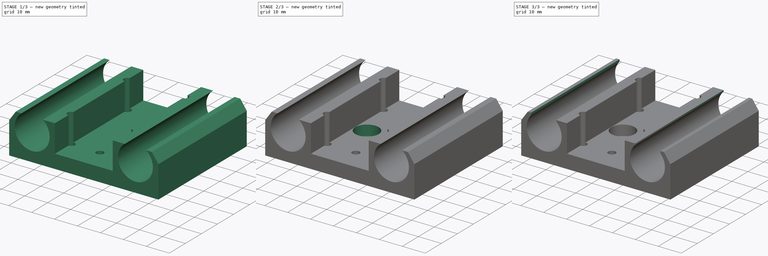
[diagram: build sequence overview — one tinted view per stage of 3, left to right]
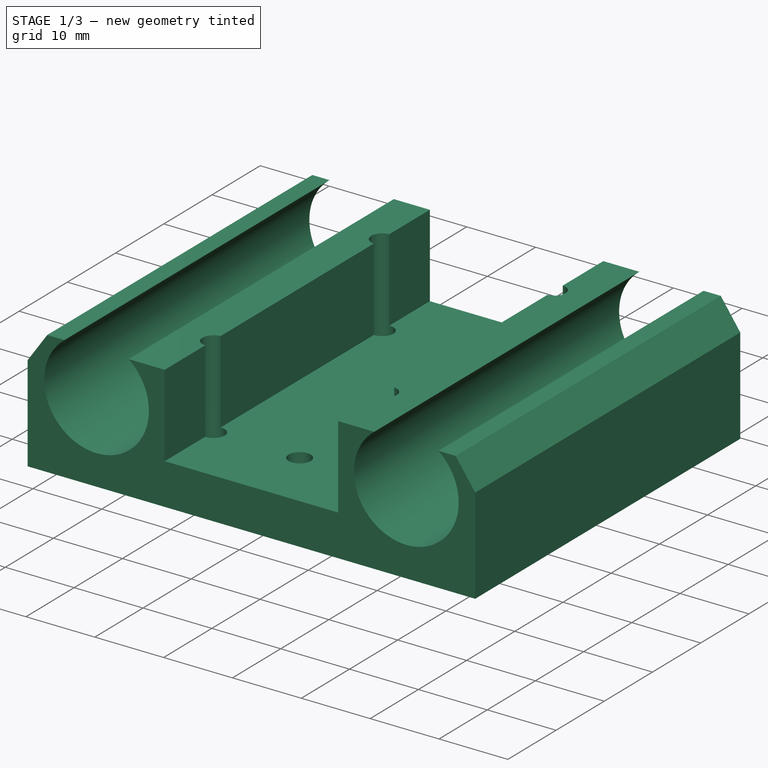
[diagram: stage 1 of 3 — iso view after this stage's code; geometry added in this stage tinted green]
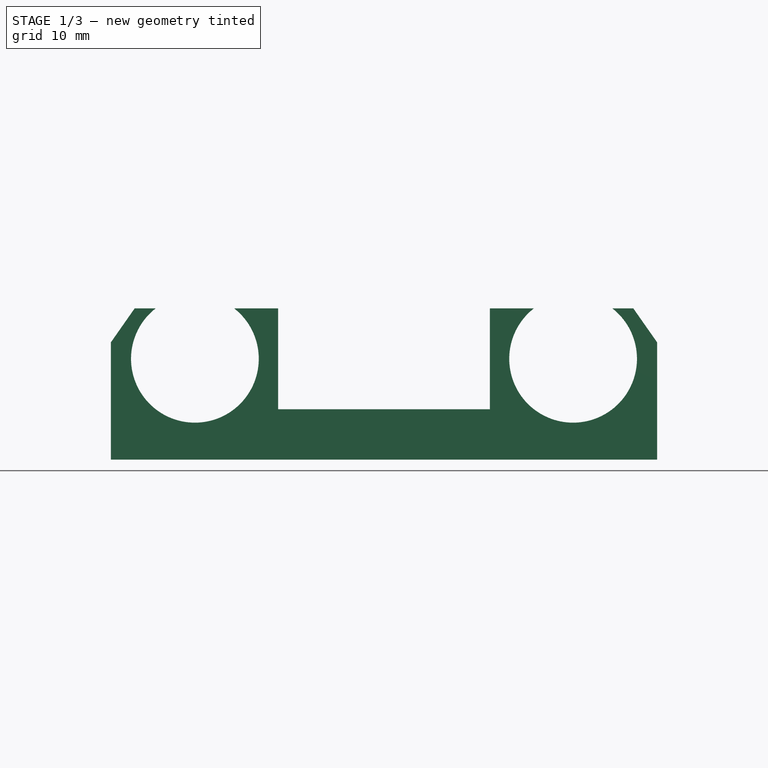
[diagram: stage 1 of 3 — front view after this stage's code; geometry added in this stage tinted green]
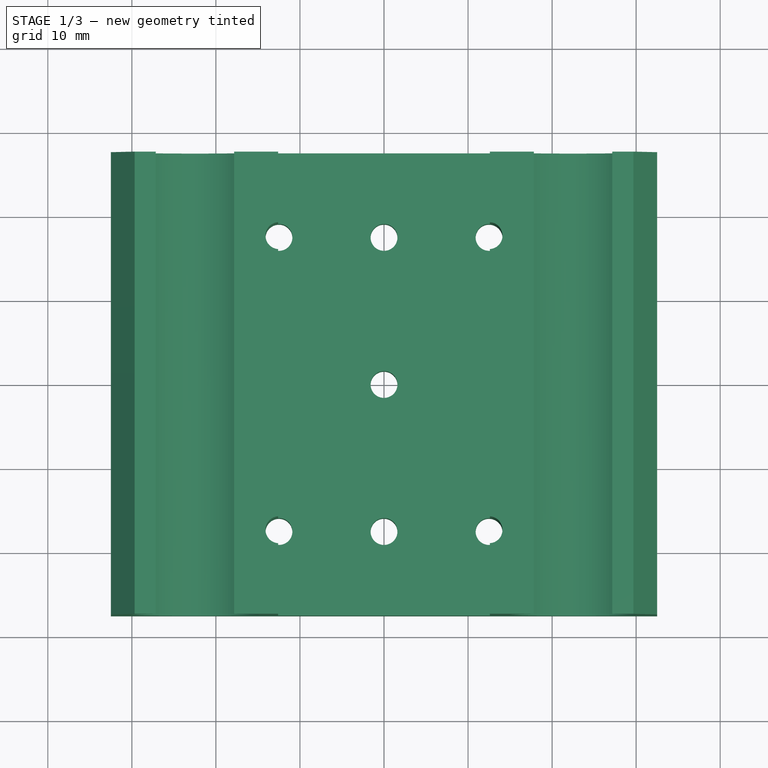
[diagram: stage 1 of 3 — top view after this stage's code; geometry added in this stage tinted green]
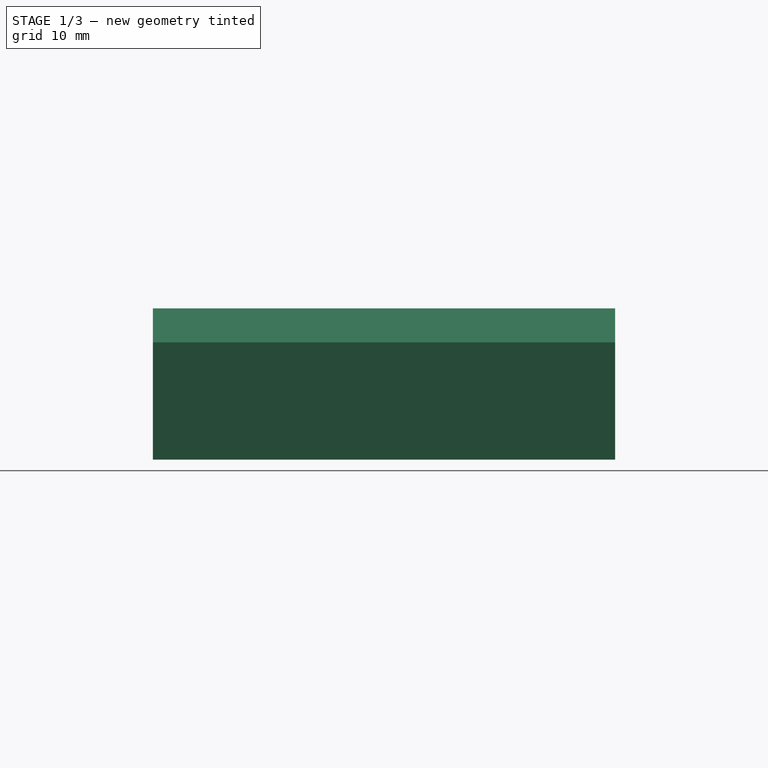
[diagram: stage 1 of 3 — right view after this stage's code; geometry added in this stage tinted green]
FCSTD DOCUMENT  (FreeCAD 0.19R20209 (Git))
Label: X-Axel-Bearing_001a
License: Creative Commons Attribution
LicenseURL: http://creativecommons.org/licenses/by/4.0/
objects: Sketcher::SketchObject×5, PartDesign::Pocket×4, PartDesign::Pad×1, PartDesign::Plane×1, PartDesign::Body×1
note: 17 computed .brp shape members not serialized (recipe doc carries the construction recipe); baked Part::Feature solids carry a one-line shape summary decoded from their .brp

FEATURE [Sketcher::SketchObject] Sketch
  MapMode = 5
  Placement = pos=(0,0,0) rot=(1,0,0;1.5708rad)
  Support = -> [XZ_Plane]
  sketch-geometry (14):
    g0: LineSegment StartX=-29.6648 StartY=6 StartZ=0 EndX=-27.1648 EndY=6 EndZ=0
    g1: LineSegment StartX=32.5 StartY=1.95086 StartZ=0 EndX=32.5 EndY=-12 EndZ=0
    g2: LineSegment StartX=32.5 StartY=-12 StartZ=0 EndX=-32.5 EndY=-12 EndZ=0
    g3: LineSegment StartX=-32.5 StartY=-12 StartZ=0 EndX=-32.5 EndY=1.95086 EndZ=0
    g4: ArcOfCircle CenterX=-22.5 CenterY=0 CenterZ=0 NormalX=0 NormalY=0 NormalZ=1 AngleXU=0 Radius=7.6 StartAngle=2.23164 EndAngle=7.19314
    g5: ArcOfCircle CenterX=22.5 CenterY=0 CenterZ=0 NormalX=0 NormalY=0 NormalZ=1 AngleXU=0 Radius=7.6 StartAngle=2.23164 EndAngle=7.19314
    g6: LineSegment StartX=-17.8352 StartY=6 StartZ=0 EndX=-12.6 EndY=6 EndZ=0
    g7: LineSegment StartX=27.1648 StartY=6 StartZ=0 EndX=29.6648 EndY=6 EndZ=0
    g8: LineSegment StartX=12.6 StartY=6 StartZ=0 EndX=12.6 EndY=-6 EndZ=0
    g9: LineSegment StartX=12.6 StartY=-6 StartZ=0 EndX=-12.6 EndY=-6 EndZ=0
    g10: LineSegment StartX=-12.6 StartY=-6 StartZ=0 EndX=-12.6 EndY=6 EndZ=0
    g11: LineSegment StartX=12.6 StartY=6 StartZ=0 EndX=17.8352 EndY=6 EndZ=0
    g12: LineSegment StartX=29.6648 StartY=6 StartZ=0 EndX=32.5 EndY=1.95086 EndZ=0
    g13: LineSegment StartX=-32.5 StartY=1.95086 StartZ=0 EndX=-29.6648 EndY=6 EndZ=0
  constraints (38):
    c: Coincident(g1,g2)
    c: Coincident(g2,g3)
    c: Horizontal(g0)
    c: Vertical(g1)
    c: Vertical(g3)
    c: Symmetric(g1,g2,g-2)
    c: DistanceX(g2,g1) = 65
    c: DistanceY(g1,g-1) = 12
    c: Equal(g5,g4)
    c: Horizontal(g4,g5)
    c: Diameter(g4) = 15.2
    c: DistanceX(g4,g5) = 45
    c: Symmetric(g4,g5,g-1)
    c: Coincident(g0,g4)
    c: Coincident(g6,g4)
    c: Tangent(g0,g6)
    c: Coincident(g11,g5)
    c: Coincident(g7,g5)
    c: Tangent(g6,g7)
    c: Coincident(g8,g9)
    c: Coincident(g9,g10)
    c: Vertical(g8)
    c: Vertical(g10)
    c: DistanceY(g1,g8) = 6
    c: DistanceX(g9,g9) = 25.2
    c: Symmetric(g8,g9,g-2)
    c: Coincident(g6,g10)
    c: Coincident(g11,g8)
    c: Tangent(g6,g11)
    c: Angle(g12,g1) = 2.53073
    c: Coincident(g7,g12)
    c: Coincident(g1,g12)
    c: Coincident(g0,g13)
    c: Coincident(g3,g13)
    c: Angle(g3,g13) = 2.53073
    c: Equal(g7,g0)
    c: DistanceX(g0,g0) = 2.5
    c: DistanceY(g1,g7) = 18
FEATURE [PartDesign::Pad] Pad
  Length = 55
  Length2 = 100
  Midplane = true
  Placement = pos=(0,0,0) rot=(1,0,0;1.5708rad)
  Profile = -> Sketch
  Refine = true
  Type = 0
FEATURE [Sketcher::SketchObject] Sketch001
  MapMode = 5
  Support = -> [XY_Plane]
  sketch-geometry (11):
    g0: LineSegment [constr] StartX=-12.5 StartY=17.5 StartZ=0 EndX=12.5 EndY=17.5 EndZ=0
    g1: LineSegment [constr] StartX=12.5 StartY=17.5 StartZ=0 EndX=12.5 EndY=-17.5 EndZ=0
    g2: LineSegment [constr] StartX=12.5 StartY=-17.5 StartZ=0 EndX=-12.5 EndY=-17.5 EndZ=0
    g3: LineSegment [constr] StartX=-12.5 StartY=-17.5 StartZ=0 EndX=-12.5 EndY=17.5 EndZ=0
    g4: Circle CenterX=-12.5 CenterY=17.5 CenterZ=0 NormalX=0 NormalY=0 NormalZ=1 AngleXU=0 Radius=1.6
    g5: Circle CenterX=-12.5 CenterY=-17.5 CenterZ=0 NormalX=0 NormalY=0 NormalZ=1 AngleXU=0 Radius=1.6
    g6: Circle CenterX=12.5 CenterY=17.5 CenterZ=0 NormalX=0 NormalY=0 NormalZ=1 AngleXU=0 Radius=1.6
    g7: Circle CenterX=12.5 CenterY=-17.5 CenterZ=0 NormalX=0 NormalY=0 NormalZ=1 AngleXU=0 Radius=1.6
    g8: Circle CenterX=3e-16 CenterY=17.5 CenterZ=0 NormalX=0 NormalY=0 NormalZ=1 AngleXU=0 Radius=1.6
    g9: Circle CenterX=-6e-16 CenterY=-17.5 CenterZ=0 NormalX=0 NormalY=0 NormalZ=1 AngleXU=0 Radius=1.6
    g10: Circle CenterX=0 CenterY=0 CenterZ=0 NormalX=0 NormalY=0 NormalZ=1 AngleXU=0 Radius=1.6
  constraints (25):
    c: Coincident(g0,g1)
    c: Coincident(g1,g2)
    c: Coincident(g2,g3)
    c: Coincident(g3,g0)
    c: Horizontal(g0)
    c: Horizontal(g2)
    c: Vertical(g1)
    c: Vertical(g3)
    c: Symmetric(g0,g2,g-1)
    c: DistanceX(g0,g0) = 25
    c: DistanceY(g1,g1) = 35
    c: Equal(g7,g6)
    c: Equal(g6,g4)
    c: Equal(g4,g5)
    c: Diameter(g4) = 3.2
    c: Coincident(g4,g0)
    c: Coincident(g5,g2)
    c: Coincident(g6,g0)
    c: Coincident(g7,g1)
    c: Equal(g8,g9)
    c: Equal(g9,g4)
    c: Symmetric(g4,g6,g8)
    c: Symmetric(g5,g7,g9)
    c: Equal(g10,g4)
    c: Coincident(g10,g-1)
FEATURE [Sketcher::SketchObject] Sketch002
  MapMode = 5
  Support = -> [XY_Plane]
  sketch-geometry (2):
    g0: Circle CenterX=-7.4 CenterY=0 CenterZ=0 NormalX=0 NormalY=0 NormalZ=1 AngleXU=0 Radius=5.1
    g1: Circle CenterX=7.4 CenterY=0 CenterZ=0 NormalX=0 NormalY=0 NormalZ=1 AngleXU=0 Radius=5.1
  constraints (5):
    c: Equal(g1,g0)
    c: Horizontal(g1,g0)
    c: Diameter(g0) = 10.2
    c: Symmetric(g0,g1,g-1)
    c: DistanceX(g0,g1) = 14.8
FEATURE [PartDesign::Pocket] Pocket
  BaseFeature = -> Pad
  Length = 5
  Length2 = 100
  Midplane = true
  Placement = pos=(0,0,0) rot=(1,0,0;1.5708rad)
  Profile = -> Sketch001
  Refine = true
  Type = 1
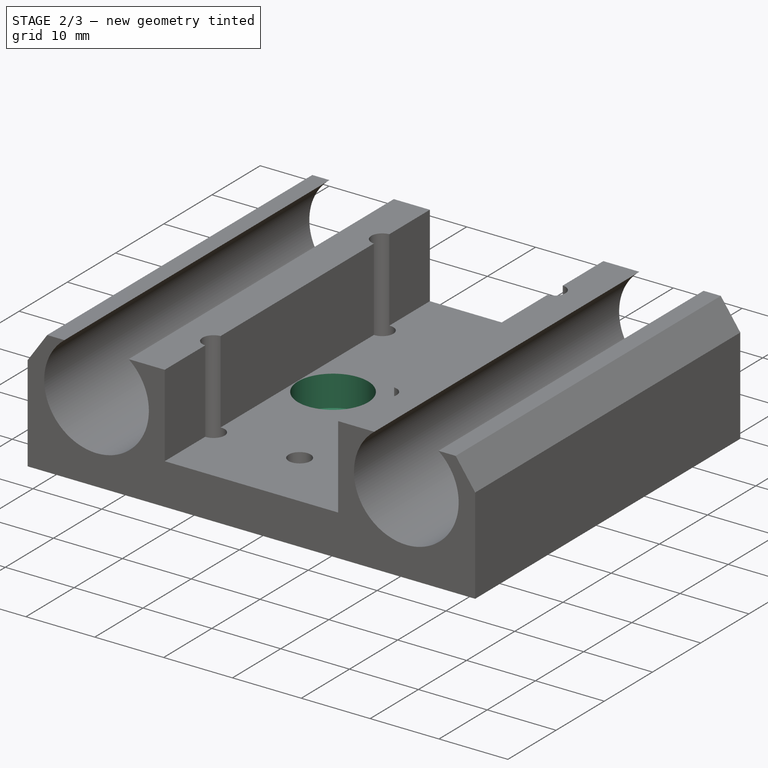
[diagram: stage 2 of 3 — iso view after this stage's code; geometry added in this stage tinted green]
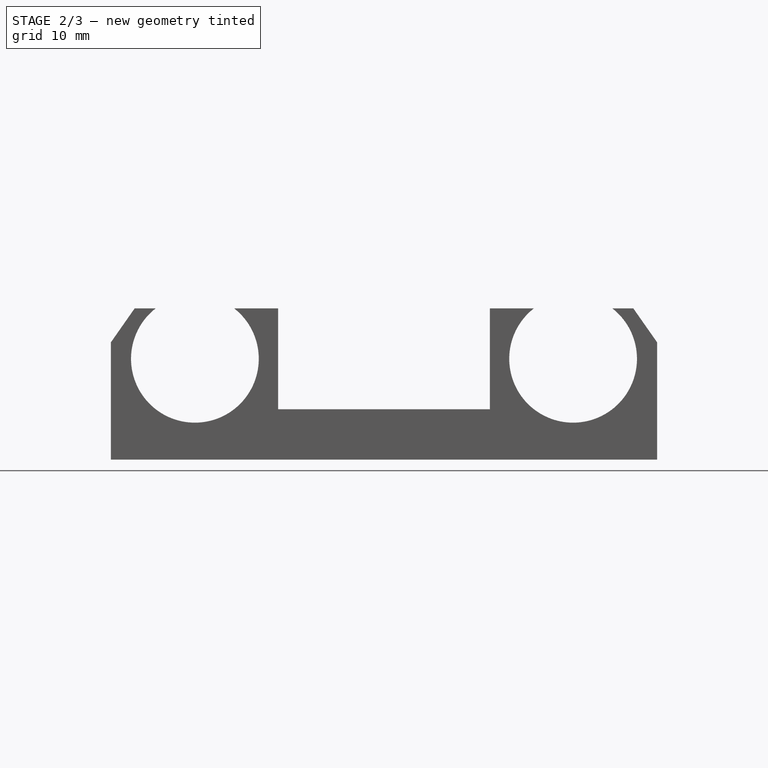
[diagram: stage 2 of 3 — front view after this stage's code; geometry added in this stage tinted green]
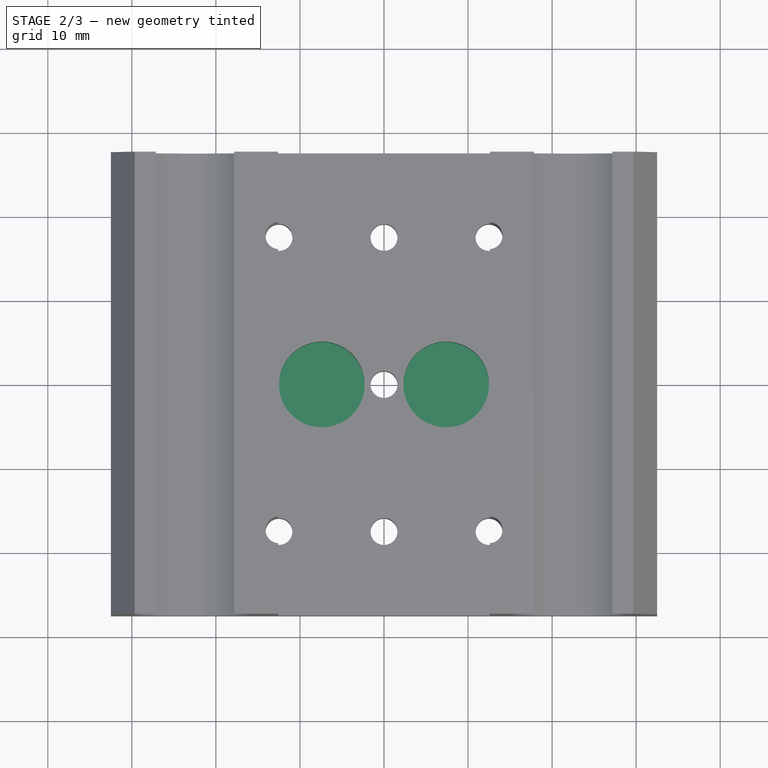
[diagram: stage 2 of 3 — top view after this stage's code; geometry added in this stage tinted green]
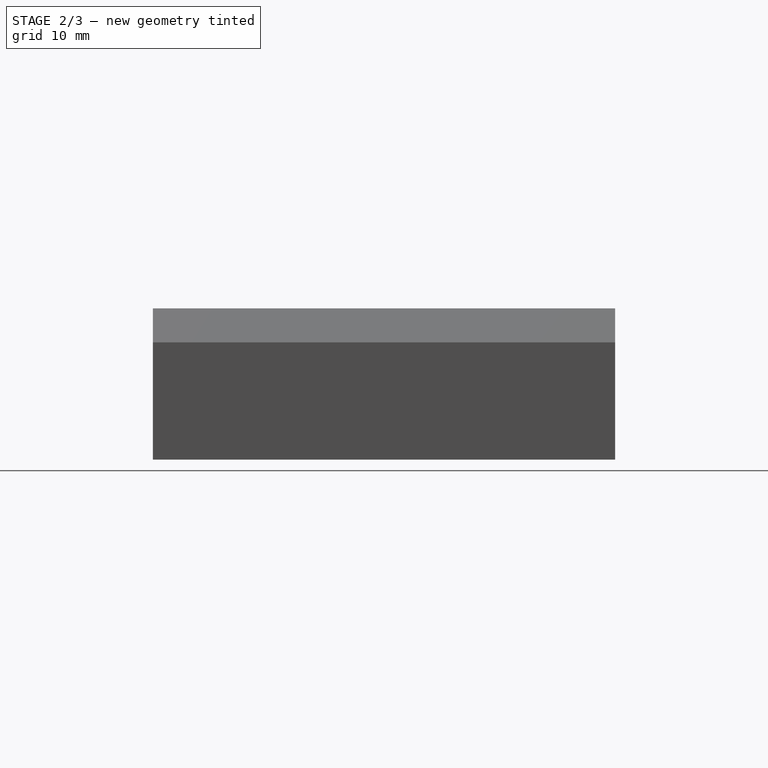
[diagram: stage 2 of 3 — right view after this stage's code; geometry added in this stage tinted green]
FEATURE [PartDesign::Pocket] Pocket001
  BaseFeature = -> Pocket
  Length = 10.5
  Length2 = 100
  Placement = pos=(0,0,0) rot=(1,0,0;1.5708rad)
  Profile = -> Sketch002
  Refine = true
  Type = 0
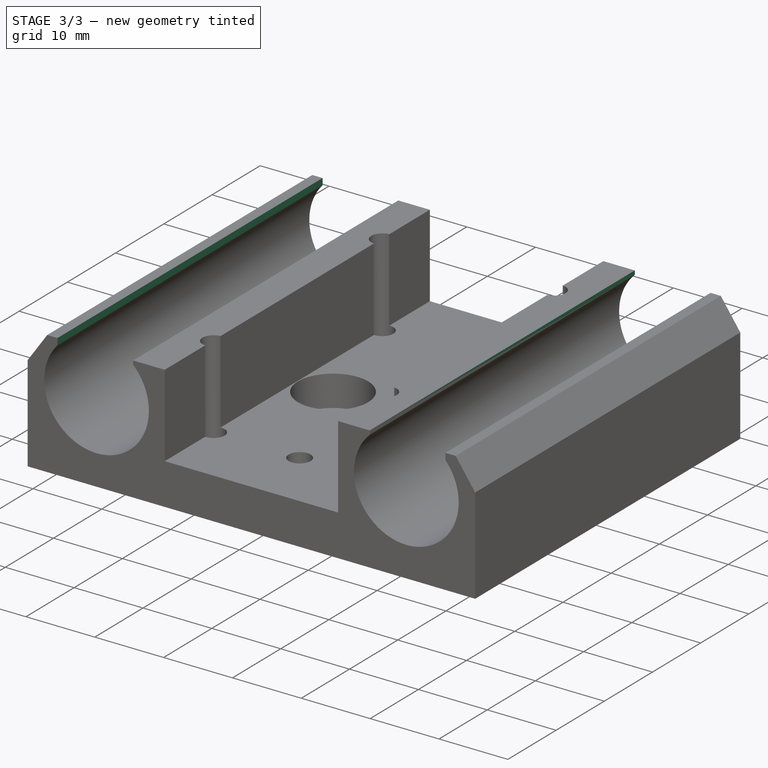
[diagram: stage 3 of 3 — iso view after this stage's code; geometry added in this stage tinted green]
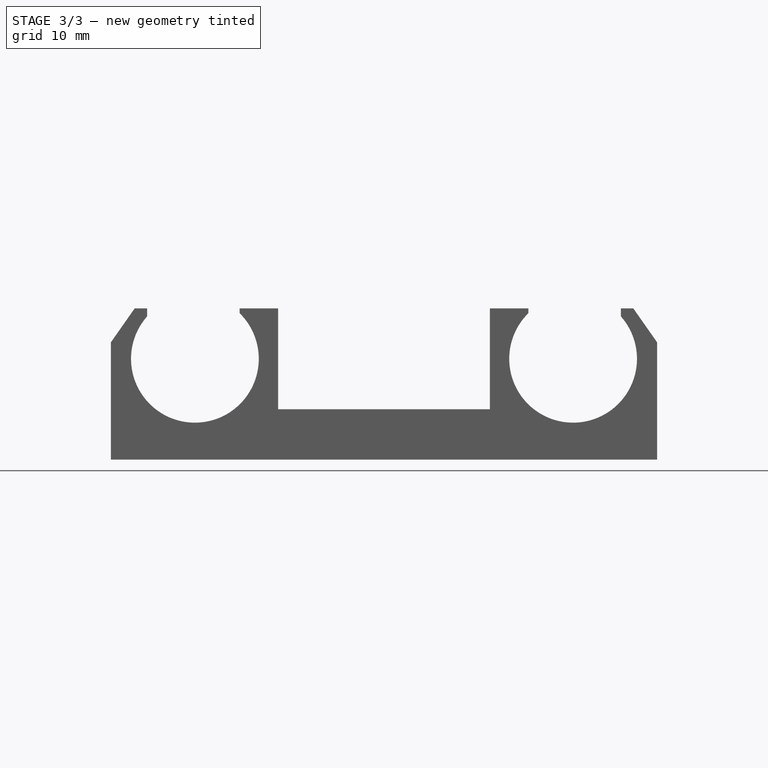
[diagram: stage 3 of 3 — front view after this stage's code; geometry added in this stage tinted green]
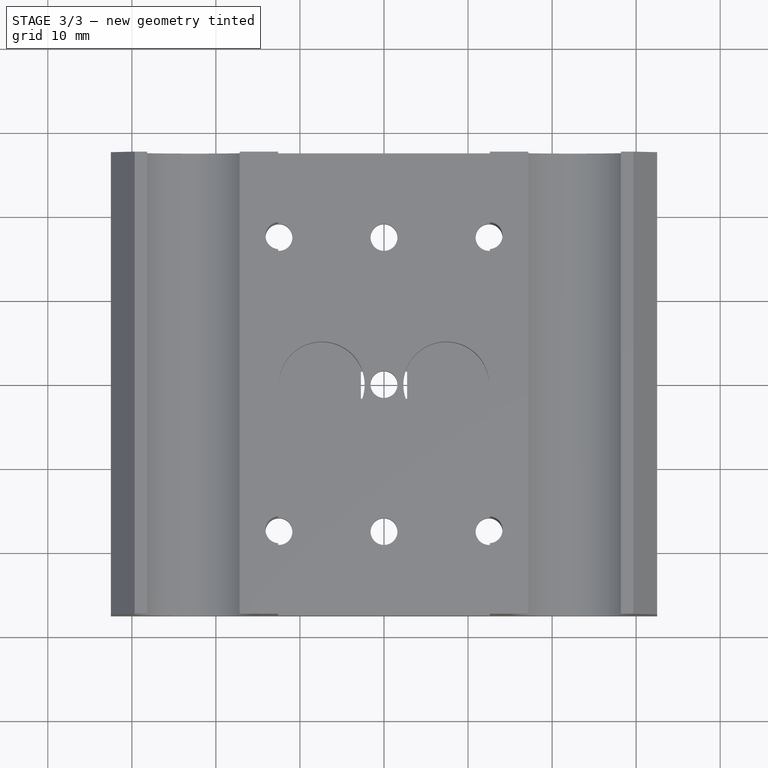
[diagram: stage 3 of 3 — top view after this stage's code; geometry added in this stage tinted green]
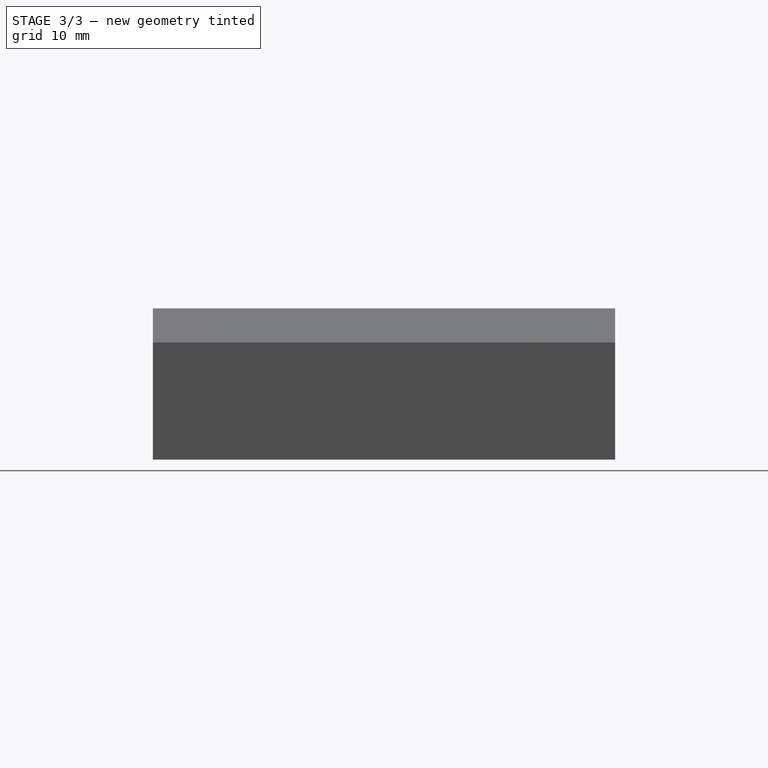
[diagram: stage 3 of 3 — right view after this stage's code; geometry added in this stage tinted green]
FEATURE [Sketcher::SketchObject] Sketch004
  MapMode = 5
  Placement = pos=(0,0,0) rot=(1,0,0;1.5708rad)
  Support = -> [XZ_Plane]
  sketch-geometry (10):
    g0: LineSegment StartX=-28.1774 StartY=11 StartZ=0 EndX=-17.1774 EndY=11 EndZ=0
    g1: LineSegment StartX=-17.1774 StartY=11 StartZ=0 EndX=-17.1774 EndY=0 EndZ=0
    g2: LineSegment StartX=-17.1774 StartY=0 StartZ=0 EndX=-28.1774 EndY=0 EndZ=0
    g3: LineSegment StartX=-28.1774 StartY=0 StartZ=0 EndX=-28.1774 EndY=11 EndZ=0
    g4: LineSegment StartX=17.1774 StartY=11 StartZ=0 EndX=28.1774 EndY=11 EndZ=0
    g5: LineSegment StartX=28.1774 StartY=11 StartZ=0 EndX=28.1774 EndY=0 EndZ=0
    g6: LineSegment StartX=28.1774 StartY=0 StartZ=0 EndX=17.1774 EndY=0 EndZ=0
    g7: LineSegment StartX=17.1774 StartY=0 StartZ=0 EndX=17.1774 EndY=11 EndZ=0
    g8: GeomPoint X=-22.6774 Y=0 Z=0
    g9: GeomPoint X=22.6774 Y=0 Z=0
  constraints (24):
    c: Coincident(g0,g1)
    c: Coincident(g1,g2)
    c: Coincident(g2,g3)
    c: Coincident(g3,g0)
    c: Horizontal(g0)
    c: Horizontal(g2)
    c: Vertical(g1)
    c: Vertical(g3)
    c: Coincident(g4,g5)
    c: Coincident(g5,g6)
    c: Coincident(g6,g7)
    c: Coincident(g7,g4)
    c: Horizontal(g4)
    c: Horizontal(g6)
    c: Vertical(g5)
    c: Vertical(g7)
    c: Equal(g2,g6)
    c: DistanceX(g0,g0) = 11
    c: Symmetric(g6,g5,g9)
    c: Symmetric(g1,g2,g8)
    c: Horizontal(g4,g0)
    c: Equal(g3,g0)
    c: Symmetric(g8,g9,g-1)
    c: Horizontal(g8,g9)
FEATURE [PartDesign::Pocket] Pocket003
  BaseFeature = -> Pocket001
  Length = 5
  Length2 = 100
  Midplane = true
  Placement = pos=(0,0,0) rot=(1,0,0;1.5708rad)
  Profile = -> Sketch004
  Refine = true
  Type = 1
FEATURE [PartDesign::Plane] DatumPlane
  AttachmentOffset = pos=(0,0,-12) rot=(0,0,1;0rad)
  Length = 76.9583
  MapMode = 5
  Placement = pos=(0,0,-12) rot=(0,0,1;0rad)
  ResizeMode = 0
  Support = -> [XY_Plane]
  Width = 66.9583
FEATURE [Sketcher::SketchObject] Sketch005
  ExternalGeometry = -> [Pocket003]
  MapMode = 5
  Placement = pos=(0,0,-12) rot=(0,0,1;0rad)
  Support = -> [DatumPlane]
  sketch-geometry (49):
    g0: LineSegment StartX=-9.75 StartY=15.9123 StartZ=0 EndX=-9.75 EndY=19.0877 EndZ=0
    g1: LineSegment StartX=-9.75 StartY=19.0877 StartZ=0 EndX=-12.5 EndY=20.6754 EndZ=0
    g2: LineSegment StartX=-12.5 StartY=20.6754 StartZ=0 EndX=-15.25 EndY=19.0877 EndZ=0
    g3: LineSegment StartX=-15.25 StartY=19.0877 StartZ=0 EndX=-15.25 EndY=15.9123 EndZ=0
    g4: LineSegment StartX=-15.25 StartY=15.9123 StartZ=0 EndX=-12.5 EndY=14.3246 EndZ=0
    g5: LineSegment StartX=-12.5 StartY=14.3246 StartZ=0 EndX=-9.75 EndY=15.9123 EndZ=0
    g6: Circle [constr] CenterX=-12.5 CenterY=17.5 CenterZ=0 NormalX=0 NormalY=0 NormalZ=1 AngleXU=0 Radius=3.17543
    g7: LineSegment StartX=2.75 StartY=15.9123 StartZ=0 EndX=2.75 EndY=19.0877 EndZ=0
    g8: LineSegment StartX=2.75 StartY=19.0877 StartZ=0 EndX=4e-16 EndY=20.6754 EndZ=0
    g9: LineSegment StartX=4e-16 StartY=20.6754 StartZ=0 EndX=-2.75 EndY=19.0877 EndZ=0
    g10: LineSegment StartX=-2.75 StartY=19.0877 StartZ=0 EndX=-2.75 EndY=15.9123 EndZ=0
    g11: LineSegment StartX=-2.75 StartY=15.9123 StartZ=0 EndX=4e-16 EndY=14.3246 EndZ=0
    g12: LineSegment StartX=4e-16 StartY=14.3246 StartZ=0 EndX=2.75 EndY=15.9123 EndZ=0
    g13: Circle [constr] CenterX=4e-16 CenterY=17.5 CenterZ=0 NormalX=0 NormalY=0 NormalZ=1 AngleXU=0 Radius=3.17543
    g14: LineSegment StartX=15.25 StartY=15.9123 StartZ=0 EndX=15.25 EndY=19.0877 EndZ=0
    g15: LineSegment StartX=15.25 StartY=19.0877 StartZ=0 EndX=12.5 EndY=20.6754 EndZ=0
    g16: LineSegment StartX=12.5 StartY=20.6754 StartZ=0 EndX=9.75 EndY=19.0877 EndZ=0
    g17: LineSegment StartX=9.75 StartY=19.0877 StartZ=0 EndX=9.75 EndY=15.9123 EndZ=0
    g18: LineSegment StartX=9.75 StartY=15.9123 StartZ=0 EndX=12.5 EndY=14.3246 EndZ=0
    g19: LineSegment StartX=12.5 StartY=14.3246 StartZ=0 EndX=15.25 EndY=15.9123 EndZ=0
    g20: Circle [constr] CenterX=12.5 CenterY=17.5 CenterZ=0 NormalX=0 NormalY=0 NormalZ=1 AngleXU=0 Radius=3.17543
    g21: LineSegment StartX=2.75 StartY=-1.58771 StartZ=0 EndX=2.75 EndY=1.58771 EndZ=0
    g22: LineSegment StartX=2.75 StartY=1.58771 StartZ=0 EndX=0 EndY=3.17543 EndZ=0
    g23: LineSegment StartX=0 StartY=3.17543 StartZ=0 EndX=-2.75 EndY=1.58771 EndZ=0
    g24: LineSegment StartX=-2.75 StartY=1.58771 StartZ=0 EndX=-2.75 EndY=-1.58771 EndZ=0
    g25: LineSegment StartX=-2.75 StartY=-1.58771 StartZ=0 EndX=0 EndY=-3.17543 EndZ=0
    g26: LineSegment StartX=0 StartY=-3.17543 StartZ=0 EndX=2.75 EndY=-1.58771 EndZ=0
    g27: Circle [constr] CenterX=0 CenterY=0 CenterZ=0 NormalX=0 NormalY=0 NormalZ=1 AngleXU=0 Radius=3.17543
    g28: LineSegment StartX=-9.75 StartY=-15.9123 StartZ=0 EndX=-12.5 EndY=-14.3246 EndZ=0
    g29: LineSegment StartX=-12.5 StartY=-14.3246 StartZ=0 EndX=-15.25 EndY=-15.9123 EndZ=0
    g30: LineSegment StartX=-15.25 StartY=-15.9123 StartZ=0 EndX=-15.25 EndY=-19.0877 EndZ=0
    g31: LineSegment StartX=-15.25 StartY=-19.0877 StartZ=0 EndX=-12.5 EndY=-20.6754 EndZ=0
    g32: LineSegment StartX=-12.5 StartY=-20.6754 StartZ=0 EndX=-9.75 EndY=-19.0877 EndZ=0
    g33: LineSegment StartX=-9.75 StartY=-19.0877 StartZ=0 EndX=-9.75 EndY=-15.9123 EndZ=0
    g34: Circle [constr] CenterX=-12.5 CenterY=-17.5 CenterZ=0 NormalX=0 NormalY=0 NormalZ=1 AngleXU=0 Radius=3.17543
    g35: LineSegment StartX=2.75 StartY=-19.0877 StartZ=0 EndX=2.75 EndY=-15.9123 EndZ=0
    g36: LineSegment StartX=2.75 StartY=-15.9123 StartZ=0 EndX=-4e-16 EndY=-14.3246 EndZ=0
    g37: LineSegment StartX=-4e-16 StartY=-14.3246 StartZ=0 EndX=-2.75 EndY=-15.9123 EndZ=0
    g38: LineSegment StartX=-2.75 StartY=-15.9123 StartZ=0 EndX=-2.75 EndY=-19.0877 EndZ=0
    g39: LineSegment StartX=-2.75 StartY=-19.0877 StartZ=0 EndX=-4e-16 EndY=-20.6754 EndZ=0
    g40: LineSegment StartX=-4e-16 StartY=-20.6754 StartZ=0 EndX=2.75 EndY=-19.0877 EndZ=0
    g41: Circle [constr] CenterX=-4e-16 CenterY=-17.5 CenterZ=0 NormalX=0 NormalY=0 NormalZ=1 AngleXU=0 Radius=3.17543
    g42: LineSegment StartX=15.25 StartY=-19.0877 StartZ=0 EndX=15.25 EndY=-15.9123 EndZ=0
    g43: LineSegment StartX=15.25 StartY=-15.9123 StartZ=0 EndX=12.5 EndY=-14.3246 EndZ=0
    g44: LineSegment StartX=12.5 StartY=-14.3246 StartZ=0 EndX=9.75 EndY=-15.9123 EndZ=0
    g45: LineSegment StartX=9.75 StartY=-15.9123 StartZ=0 EndX=9.75 EndY=-19.0877 EndZ=0
    g46: LineSegment StartX=9.75 StartY=-19.0877 StartZ=0 EndX=12.5 EndY=-20.6754 EndZ=0
    g47: LineSegment StartX=12.5 StartY=-20.6754 StartZ=0 EndX=15.25 EndY=-19.0877 EndZ=0
    g48: Circle [constr] CenterX=12.5 CenterY=-17.5 CenterZ=0 NormalX=0 NormalY=0 NormalZ=1 AngleXU=0 Radius=3.17543
  constraints (112):
    c: Coincident(g0,g1)
    c: Coincident(g1,g2)
    c: Coincident(g2,g3)
    c: Coincident(g3,g4)
    c: Coincident(g4,g5)
    c: Coincident(g5,g0)
    c: Equal(g0, g1-g5) x5
    c: PointOnObject(g0,g6)
    c: PointOnObject(g1,g6)
    c: PointOnObject(g2,g6)
    c: PointOnObject(g3,g6)
    c: PointOnObject(g4,g6)
    c: PointOnObject(g5,g6)
    c: Coincident(g7,g8)
    c: Coincident(g8,g9)
    c: Coincident(g9,g10)
    c: Coincident(g10,g11)
    c: Coincident(g11,g12)
    c: Coincident(g12,g7)
    c: Equal(g7, g8-g12) x5
    c: PointOnObject(g7,g13)
    c: PointOnObject(g8,g13)
    c: PointOnObject(g9,g13)
    c: PointOnObject(g10,g13)
    c: PointOnObject(g11,g13)
    c: PointOnObject(g12,g13)
    c: Coincident(g14,g15)
    c: Coincident(g15,g16)
    c: Coincident(g16,g17)
    c: Coincident(g17,g18)
    c: Coincident(g18,g19)
    c: Coincident(g19,g14)
    c: Equal(g14, g15-g19) x5
    c: PointOnObject(g14,g20)
    c: PointOnObject(g15,g20)
    c: PointOnObject(g16,g20)
    c: PointOnObject(g17,g20)
    c: PointOnObject(g18,g20)
    c: PointOnObject(g19,g20)
    c: Coincident(g21,g22)
    c: Coincident(g22,g23)
    c: Coincident(g23,g24)
    c: Coincident(g24,g25)
    c: Coincident(g25,g26)
    c: Coincident(g26,g21)
    c: Equal(g21, g22-g26) x5
    c: PointOnObject(g21,g27)
    c: PointOnObject(g22,g27)
    c: PointOnObject(g23,g27)
    c: PointOnObject(g24,g27)
    c: PointOnObject(g25,g27)
    c: PointOnObject(g26,g27)
    c: Coincident(g28,g29)
    c: Coincident(g29,g30)
    c: Coincident(g30,g31)
    c: Coincident(g31,g32)
    c: Coincident(g32,g33)
    c: Coincident(g33,g28)
    c: Equal(g28, g29-g33) x5
    c: PointOnObject(g28,g34)
    c: PointOnObject(g29,g34)
    c: PointOnObject(g30,g34)
    c: PointOnObject(g31,g34)
    c: PointOnObject(g32,g34)
    c: PointOnObject(g33,g34)
    c: Coincident(g35,g36)
    c: Coincident(g36,g37)
    c: Coincident(g37,g38)
    c: Coincident(g38,g39)
    c: Coincident(g39,g40)
    c: Coincident(g40,g35)
    c: Equal(g35, g36-g40) x5
    c: PointOnObject(g35,g41)
    c: PointOnObject(g36,g41)
    c: PointOnObject(g37,g41)
    c: PointOnObject(g38,g41)
    c: PointOnObject(g39,g41)
    c: PointOnObject(g40,g41)
    c: Coincident(g42,g43)
    c: Coincident(g43,g44)
    c: Coincident(g44,g45)
    c: Coincident(g45,g46)
    c: Coincident(g46,g47)
    c: Coincident(g47,g42)
    c: Equal(g42, g43-g47) x5
    c: PointOnObject(g42,g48)
    c: PointOnObject(g43,g48)
    c: PointOnObject(g44,g48)
    c: PointOnObject(g45,g48)
    c: PointOnObject(g46,g48)
    c: PointOnObject(g47,g48)
    c: Equal(g6,g13)
    c: Equal(g13,g20)
    c: Equal(g20,g27)
    c: Equal(g27,g34)
    c: Equal(g34,g41)
    c: Equal(g41,g48)
    c: Distance(g0,g2) = 5.5
    c: Coincident(g6,g-3)
    c: Vertical(g6,g1)
    c: Vertical(g8,g13)
    c: Coincident(g13,g-4)
    c: Vertical(g20,g15)
    c: Coincident(g20,g-5)
    c: Vertical(g22,g27)
    c: Coincident(g27,g-1)
    c: Vertical(g34,g28)
    c: Coincident(g34,g-8)
    c: Vertical(g41,g36)
    c: Coincident(g41,g-7)
    c: Vertical(g48,g43)
    c: Coincident(g48,g-6)
FEATURE [PartDesign::Pocket] Pocket004
  BaseFeature = -> Pocket003
  Length = 2.5
  Length2 = 100
  Placement = pos=(0,0,0) rot=(1,0,0;1.5708rad)
  Profile = -> Sketch005
  Refine = true
  Reversed = true
  Type = 0
FEATURE [PartDesign::Body] Body
  Group = -> [Sketch,Pad,Sketch001,Sketch002,Pocket,Pocket001,Sketch004,Pocket003,DatumPlane,Sketch005,Pocket004]
  Origin = -> Origin
  Tip = -> Pocket004
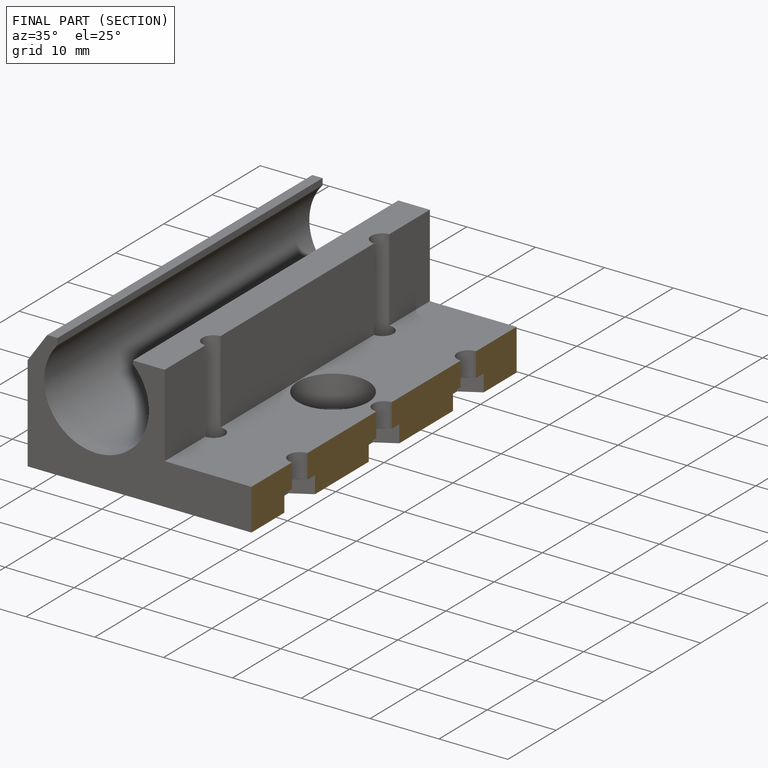
[diagram: finished part — half-section view (interior)]
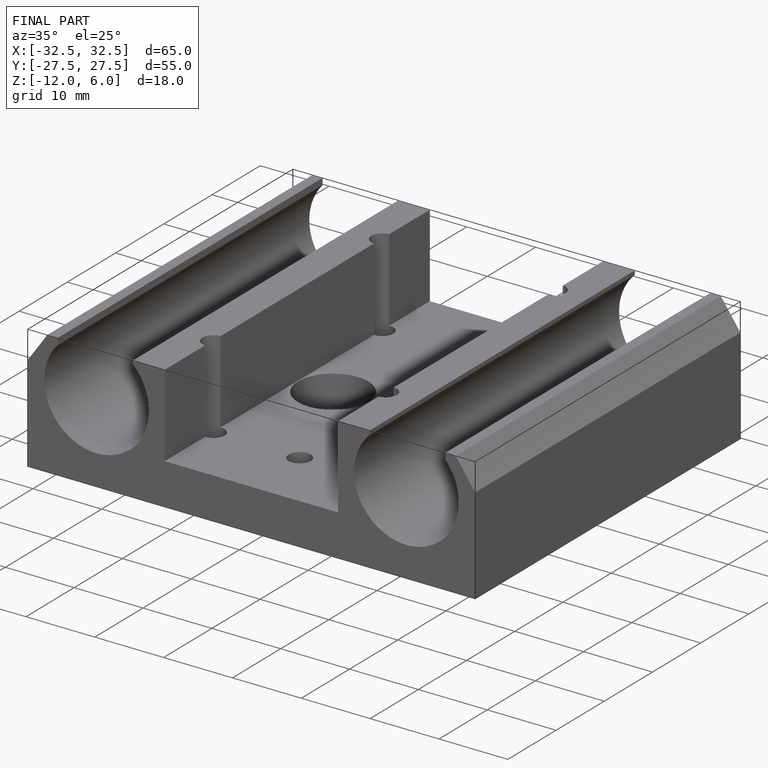
[diagram: finished part — iso view with bounding-box wireframe]
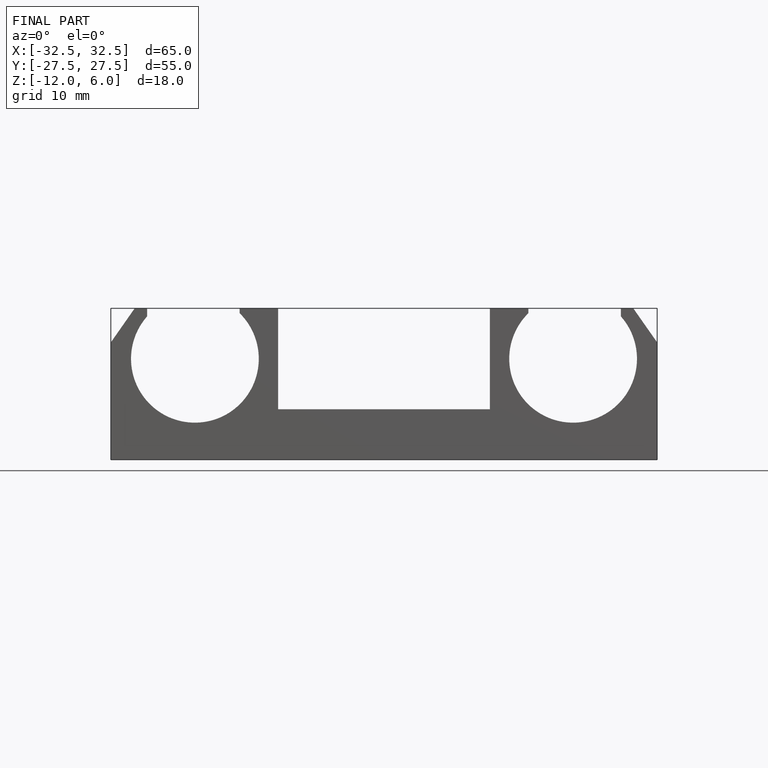
[diagram: finished part — front view with bounding-box wireframe]
